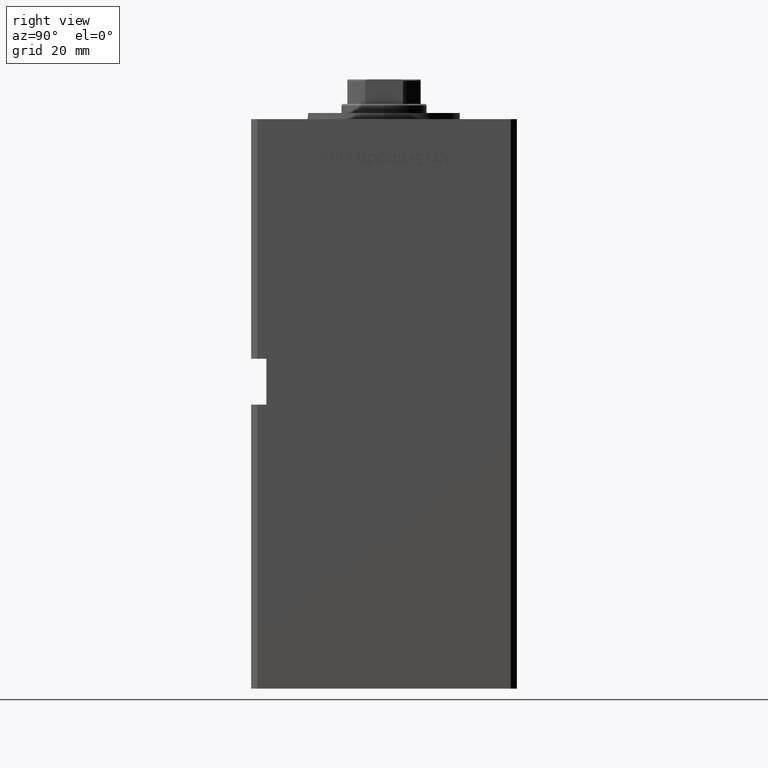
[diagram: clean part render]
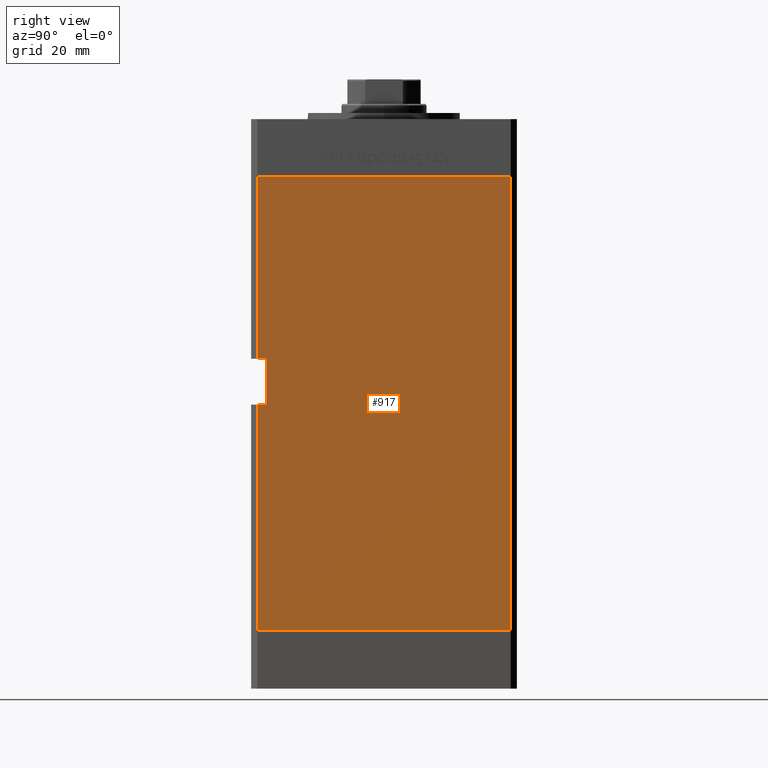
[diagram: same view with one face highlighted and labeled with its STEP entity id]
A machine part, right view. The second image highlights one B-rep face of the part: STEP entity #917.
In plain terms, the highlighted planar face has unit normal (1, -0, 0).
Its self-contained STEP definition (entity closure, byte-faithful):
#312 = DIRECTION ( 'NONE',  ( 3.344045254895050480E-16, 1.000000000000000000, 0.000000000000000000 ) ) ;
#917 = ADVANCED_FACE ( 'NONE', ( #7312 ), #44472, .T. ) ;
#1502 = EDGE_CURVE ( 'NONE', #36113, #29625, #3303, .T. ) ;
#2062 = EDGE_LOOP ( 'NONE', ( #22505, #6080, #26532, #31184, #44981, #27953, #8566, #8913 ) ) ;
#2773 = CARTESIAN_POINT ( 'NONE',  ( 50.00000000000001421, 41.49999999999999289, 148.5000000000000000 ) ) ;
#2822 = LINE ( 'NONE', #19493, #22908 ) ;
#3099 = DIRECTION ( 'NONE',  ( -0.000000000000000000, -1.000000000000000000, -0.000000000000000000 ) ) ;
#3303 = LINE ( 'NONE', #27512, #39856 ) ;
#4081 = DIRECTION ( 'NONE',  ( 1.000000000000000000, -3.344045254895050480E-16, 0.000000000000000000 ) ) ;
#5120 = LINE ( 'NONE', #30125, #31155 ) ;
#5499 = LINE ( 'NONE', #45641, #11165 ) ;
#5896 = DIRECTION ( 'NONE',  ( -0.000000000000000000, -0.000000000000000000, -1.000000000000000000 ) ) ;
#6080 = ORIENTED_EDGE ( 'NONE', *, *, #10401, .T. ) ;
#6520 = CARTESIAN_POINT ( 'NONE',  ( 49.99999999999998579, -38.50000000000000000, 74.00000000000000000 ) ) ;
#7312 = FACE_OUTER_BOUND ( 'NONE', #2062, .T. ) ;
#8566 = ORIENTED_EDGE ( 'NONE', *, *, #16549, .F. ) ;
#8913 = ORIENTED_EDGE ( 'NONE', *, *, #28575, .F. ) ;
#9757 = LINE ( 'NONE', #6520, #46775 ) ;
#9893 = CARTESIAN_POINT ( 'NONE',  ( 49.99999999999998579, -41.49999999999999289, 148.5000000000000000 ) ) ;
#10161 = LINE ( 'NONE', #9893, #38176 ) ;
#10401 = EDGE_CURVE ( 'NONE', #50487, #14197, #32007, .T. ) ;
#11165 = VECTOR ( 'NONE', #49685, 1000.000000000000000 ) ;
#11457 = EDGE_CURVE ( 'NONE', #29658, #14197, #14260, .T. ) ;
#14197 = VERTEX_POINT ( 'NONE', #23347 ) ;
#14260 = LINE ( 'NONE', #30421, #34010 ) ;
#15591 = CARTESIAN_POINT ( 'NONE',  ( 49.99999999999998579, -41.49999999999999289, 148.5000000000000000 ) ) ;
#16549 = EDGE_CURVE ( 'NONE', #41951, #35007, #2822, .T. ) ;
#19493 = CARTESIAN_POINT ( 'NONE',  ( 49.99999999999998579, -38.50000000000000000, 89.00000000000000000 ) ) ;
#21392 = VERTEX_POINT ( 'NONE', #47086 ) ;
#22168 = CARTESIAN_POINT ( 'NONE',  ( 49.99999999999998579, -41.49999999999999289, 74.00000000000000000 ) ) ;
#22395 = DIRECTION ( 'NONE',  ( -0.000000000000000000, -1.000000000000000000, -0.000000000000000000 ) ) ;
#22505 = ORIENTED_EDGE ( 'NONE', *, *, #42152, .T. ) ;
#22908 = VECTOR ( 'NONE', #3099, 1000.000000000000000 ) ;
#23347 = CARTESIAN_POINT ( 'NONE',  ( 49.99999999999998579, -41.49999999999999289, 0.000000000000000000 ) ) ;
#26372 = DIRECTION ( 'NONE',  ( -3.344045254895050973E-16, -1.000000000000000000, 0.000000000000000000 ) ) ;
#26532 = ORIENTED_EDGE ( 'NONE', *, *, #11457, .F. ) ;
#27512 = CARTESIAN_POINT ( 'NONE',  ( 50.00000000000001421, 41.49999999999999289, 148.5000000000000000 ) ) ;
#27953 = ORIENTED_EDGE ( 'NONE', *, *, #42650, .T. ) ;
#28575 = EDGE_CURVE ( 'NONE', #21392, #41951, #5499, .T. ) ;
#29596 = CARTESIAN_POINT ( 'NONE',  ( 49.99999999999998579, -41.49999999999999289, 89.00000000000000000 ) ) ;
#29625 = VERTEX_POINT ( 'NONE', #52134 ) ;
#29658 = VERTEX_POINT ( 'NONE', #43514 ) ;
#30085 = DIRECTION ( 'NONE',  ( -0.000000000000000000, -0.000000000000000000, -1.000000000000000000 ) ) ;
#30125 = CARTESIAN_POINT ( 'NONE',  ( 50.00000000000001421, 41.49999999999999289, 148.5000000000000000 ) ) ;
#30421 = CARTESIAN_POINT ( 'NONE',  ( 50.00000000000001421, 41.49999999999999289, 0.000000000000000000 ) ) ;
#31155 = VECTOR ( 'NONE', #5896, 1000.000000000000000 ) ;
#31184 = ORIENTED_EDGE ( 'NONE', *, *, #34910, .F. ) ;
#31378 = VECTOR ( 'NONE', #44405, 1000.000000000000000 ) ;
#32007 = LINE ( 'NONE', #15591, #31378 ) ;
#32048 = AXIS2_PLACEMENT_3D ( 'NONE', #52549, #4081, #312 ) ;
#34010 = VECTOR ( 'NONE', #26372, 1000.000000000000000 ) ;
#34910 = EDGE_CURVE ( 'NONE', #36113, #29658, #5120, .T. ) ;
#35007 = VERTEX_POINT ( 'NONE', #29596 ) ;
#36113 = VERTEX_POINT ( 'NONE', #2773 ) ;
#38176 = VECTOR ( 'NONE', #30085, 1000.000000000000000 ) ;
#39856 = VECTOR ( 'NONE', #43943, 1000.000000000000000 ) ;
#41951 = VERTEX_POINT ( 'NONE', #49504 ) ;
#42152 = EDGE_CURVE ( 'NONE', #21392, #50487, #9757, .T. ) ;
#42650 = EDGE_CURVE ( 'NONE', #29625, #35007, #10161, .T. ) ;
#43514 = CARTESIAN_POINT ( 'NONE',  ( 50.00000000000001421, 41.49999999999999289, 0.000000000000000000 ) ) ;
#43943 = DIRECTION ( 'NONE',  ( -3.344045254895050973E-16, -1.000000000000000000, 0.000000000000000000 ) ) ;
#44405 = DIRECTION ( 'NONE',  ( -0.000000000000000000, -0.000000000000000000, -1.000000000000000000 ) ) ;
#44472 = PLANE ( 'NONE',  #32048 ) ;
#44981 = ORIENTED_EDGE ( 'NONE', *, *, #1502, .T. ) ;
#45641 = CARTESIAN_POINT ( 'NONE',  ( 49.99999999999998579, -38.50000000000000000, 89.00000000000000000 ) ) ;
#46775 = VECTOR ( 'NONE', #22395, 1000.000000000000000 ) ;
#47086 = CARTESIAN_POINT ( 'NONE',  ( 49.99999999999998579, -38.49999999999999289, 74.00000000000000000 ) ) ;
#49504 = CARTESIAN_POINT ( 'NONE',  ( 49.99999999999998579, -38.50000000000000000, 89.00000000000000000 ) ) ;
#49685 = DIRECTION ( 'NONE',  ( -0.000000000000000000, -0.000000000000000000, 1.000000000000000000 ) ) ;
#50487 = VERTEX_POINT ( 'NONE', #22168 ) ;
#52134 = CARTESIAN_POINT ( 'NONE',  ( 49.99999999999998579, -41.49999999999999289, 148.5000000000000000 ) ) ;
#52549 = CARTESIAN_POINT ( 'NONE',  ( 50.00000000000001421, 41.49999999999999289, 148.5000000000000000 ) ) ;